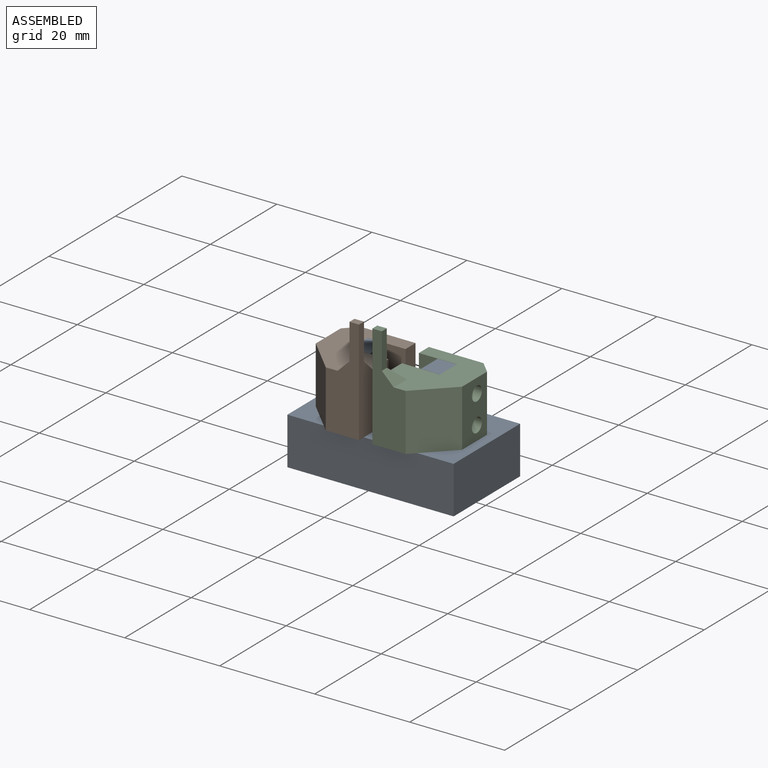
[diagram: assembled view]
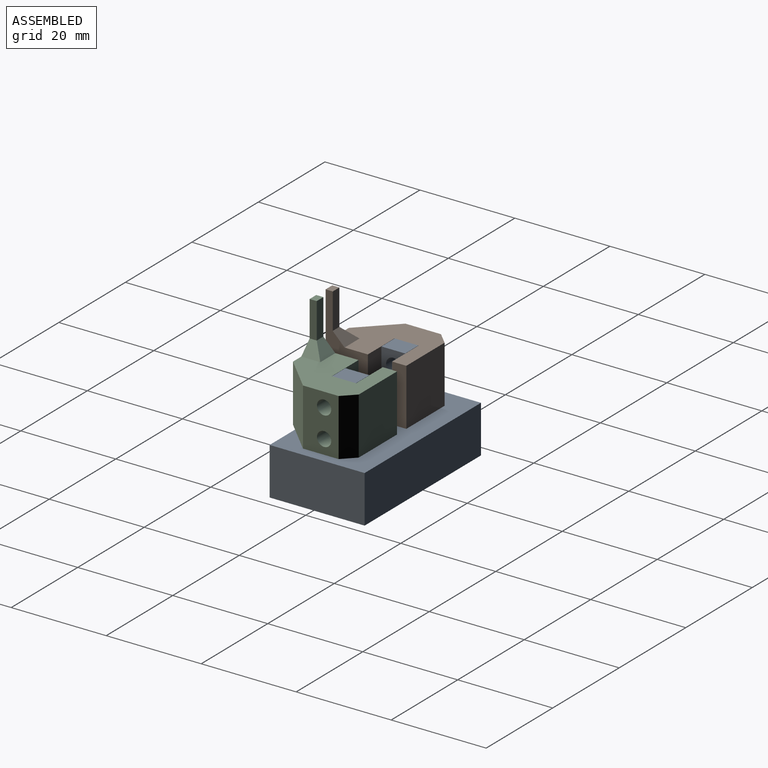
[diagram: assembled view, second angle]
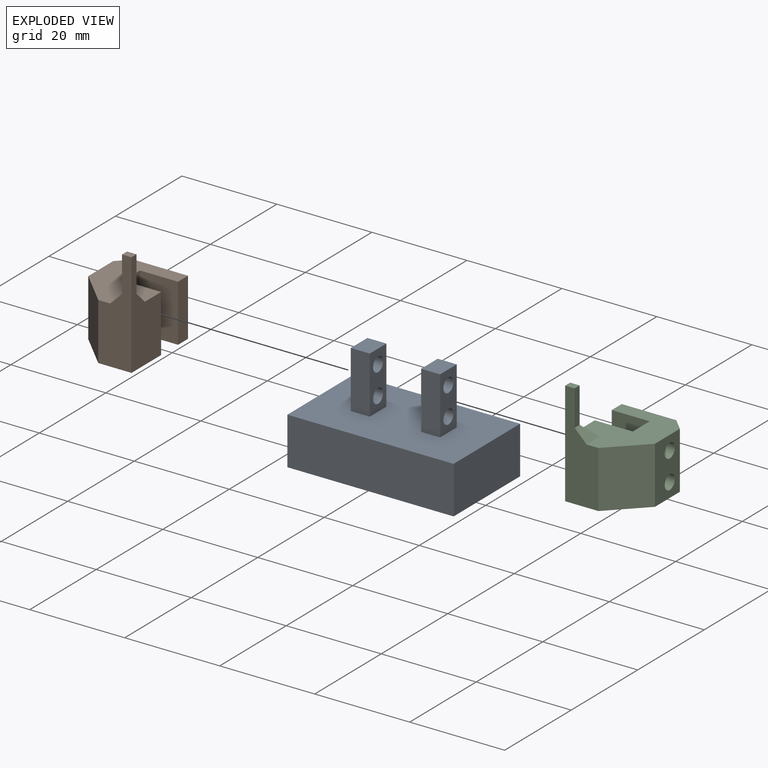
[diagram: exploded view]
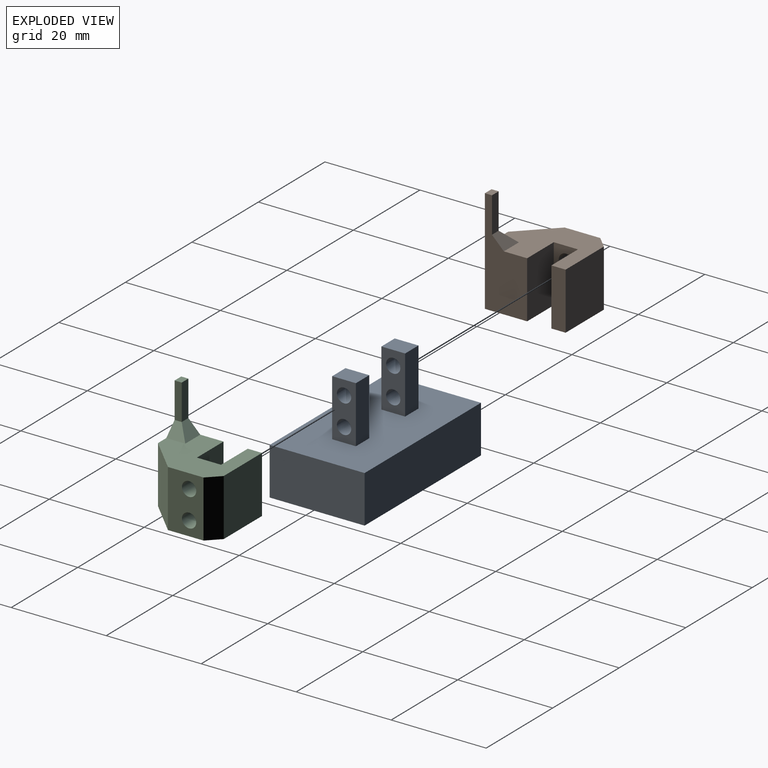
[diagram: exploded view, second angle]
ASSEMBLY  parts=3 mates=2
PART A: 20 faces, bbox 35x20x22 mm
  f0: plane 35x20mm, normal (0,0,1), area 660mm2, adj f1,f2,f3,f4,f6,f7,f8,f9
  f1: plane 35x10mm, normal (0,1,0), area 350mm2, adj f0,f2,f4,f5
  f2: plane 20x10mm, normal (-1,0,0), area 200mm2, adj f0,f1,f3,f5
  f3: plane 35x10mm, normal (0,-1,0), area 350mm2, adj f0,f2,f4,f5
  f4: plane 20x10mm, normal (1,0,0), area 200mm2, adj f0,f1,f3,f5
  f5: plane 35x20mm, normal (0,0,-1), area 700mm2, adj f1,f2,f3,f4
  f6: plane 12x5mm, normal (-1,0,0), area 45.9mm2, adj f0,f7,f9,f10,f18,f19
  f7: plane 12x4mm, normal (0,-1,0), area 48mm2, adj f0,f6,f8,f10
  f8: plane 12x5mm, normal (1,0,0), area 45.9mm2, adj f0,f7,f9,f10,f18,f19
  f9: plane 12x4mm, normal (0,1,0), area 48mm2, adj f0,f6,f8,f10
  f10: plane 5x4mm, normal (0,0,1), area 20mm2, adj f6,f7,f8,f9
  f11: plane 12x5mm, normal (1,0,0), area 45.9mm2, adj f0,f12,f14,f15,f16,f17
  f12: plane 12x4mm, normal (0,1,0), area 48mm2, adj f0,f11,f13,f15
  f13: plane 12x5mm, normal (-1,0,0), area 45.9mm2, adj f0,f12,f14,f15,f16,f17
  f14: plane 12x4mm, normal (0,-1,0), area 48mm2, adj f0,f11,f13,f15
  f15: plane 5x4mm, normal (0,0,1), area 20mm2, adj f11,f12,f13,f14
  f16: cylinder r=1.5mm len=4mm, axis (1,0,0), area 37.7mm2, adj f11,f13
  f17: cylinder r=1.5mm len=4mm, axis (1,0,0), area 37.7mm2, adj f11,f13
  f18: cylinder r=1.5mm len=4mm, axis (1,0,0), area 37.7mm2, adj f6,f8
  f19: cylinder r=1.5mm len=4mm, axis (1,0,0), area 37.7mm2, adj f6,f8
PART B: 19 faces, bbox 14x22x17 mm
  f0: plane 17x14mm, normal (0,-1,0), area 151.6mm2, adj f1,f2,f6,f7,f8,f9,f10,f11
  f1: plane 12x3mm, normal (1,0,0), area 36mm2, adj f0,f3,f6,f10
  f2: plane 22x8.9mm, normal (1,0,0), area 124.9mm2, adj f0,f3,f7,f11,f13,f15,f16
  f3: plane 17x14mm, normal (0,1,0), area 169.6mm2, adj f1,f2,f6,f7,f8,f9,f10,f11
  f4: cylinder r=1.5mm len=6mm, axis (1,0,0), area 56.5mm2, adj f12,f18
  f5: cylinder r=1.5mm len=6mm, axis (1,0,0), area 56.5mm2, adj f12,f18
  f6: plane 12x11.5mm, normal (0,0,1), area 138mm2, adj f0,f1,f3,f8
  f7: plane 22x7mm, normal (0,0,-1), area 107.1mm2, adj f0,f2,f3,f9,f14,f15,f17
  f8: plane 12x2.5mm, normal (-0.71,0,0.71), area 42.4mm2, adj f0,f3,f6,f18
  f9: plane 12x7mm, normal (-0.71,0,-0.71), area 118.8mm2, adj f0,f3,f7,f18
  f10: plane 12x8mm, normal (0,0,-1), area 96mm2, adj f0,f1,f3,f12
  f11: plane 12x8mm, normal (0,0,1), area 96mm2, adj f0,f2,f3,f12
  f12: plane 12x5.1mm, normal (1,0,0), area 47.1mm2, adj f0,f3,f4,f5,f10,f11
  f13: plane 7.5x2mm, normal (0,0,1), area 15mm2, adj f2,f14,f15,f16
  f14: plane 7.5x1.5mm, normal (-1,0,0), area 11.2mm2, adj f7,f13,f15,f17
  f15: plane 2x1.5mm, normal (0,-1,0), area 3mm2, adj f2,f7,f13,f14
  f16: plane 4.5x2.5mm, normal (0,-0.71,0.71), area 11.5mm2, adj f0,f2,f13,f17
  f17: plane 4x2.5mm, normal (-0.71,-0.71,0), area 9.7mm2, adj f0,f7,f14,f16
  f18: plane 12x7.5mm, normal (-1,0,0), area 75.9mm2, adj f0,f3,f4,f5,f8,f9
PART C: 19 faces, bbox 14x22x17 mm
  f0: plane 7.5x2mm, normal (0,0,1), area 15mm2, adj f1,f2,f4,f8
  f1: plane 2x1.5mm, normal (0,-1,0), area 3mm2, adj f0,f2,f8,f10
  f2: plane 7.5x1.5mm, normal (1,0,0), area 11.2mm2, adj f0,f1,f3,f10
  f3: plane 4x2.5mm, normal (0.71,-0.71,0), area 9.7mm2, adj f2,f4,f10,f14
  f4: plane 4.5x2.5mm, normal (0,-0.71,0.71), area 11.5mm2, adj f0,f3,f8,f14
  f5: plane 12x3mm, normal (-1,0,0), area 36mm2, adj f6,f9,f13,f14
  f6: plane 12x8mm, normal (0,0,-1), area 96mm2, adj f5,f13,f14,f16
  f7: plane 12x8mm, normal (0,0,1), area 96mm2, adj f8,f13,f14,f16
  f8: plane 22x8.9mm, normal (-1,0,0), area 124.9mm2, adj f0,f1,f4,f7,f10,f13,f14
  f9: plane 12x11.5mm, normal (0,0,1), area 138mm2, adj f5,f12,f13,f14
  f10: plane 22x7mm, normal (0,0,-1), area 107.1mm2, adj f1,f2,f3,f8,f11,f13,f14
  f11: plane 12x7mm, normal (0.71,0,-0.71), area 118.8mm2, adj f10,f13,f14,f18
  f12: plane 12x2.5mm, normal (0.71,0,0.71), area 42.4mm2, adj f9,f13,f14,f18
  f13: plane 17x14mm, normal (0,1,0), area 169.6mm2, adj f5,f6,f7,f8,f9,f10,f11,f12
  f14: plane 17x14mm, normal (0,-1,0), area 151.6mm2, adj f3,f4,f5,f6,f7,f8,f9,f10
  f15: cylinder r=1.5mm len=6mm, axis (1,0,0), area 56.5mm2, adj f16,f18
  f16: plane 12x5.1mm, normal (-1,0,0), area 47.1mm2, adj f6,f7,f13,f14,f15,f17
  f17: cylinder r=1.5mm len=6mm, axis (1,0,0), area 56.5mm2, adj f16,f18
  f18: plane 12x7.5mm, normal (1,0,0), area 75.9mm2, adj f11,f12,f13,f14,f15,f17
PLACE A t=(1.53,-58.28,-75.35)mm
PLACE B rot(axis=(-1,0,0),90deg) t=(-13.87,-69.73,-63.35)mm
PLACE C rot(axis=(-1,0,0),90deg) t=(16.93,-69.73,-63.35)mm
MATE cylindrical B.f4 <-> A.f16  axis (1,0,0) through (-7.87,-58.28,-72.35)mm
MATE cylindrical C.f15 <-> A.f16  axis (-1,0,0) through (10.93,-58.28,-72.35)mm
